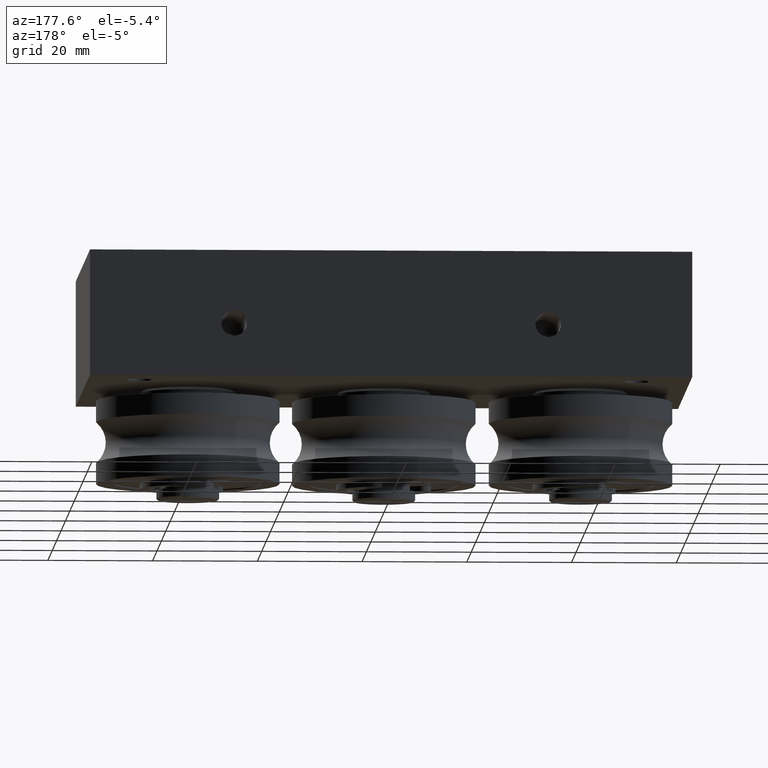
[diagram: clean part render]
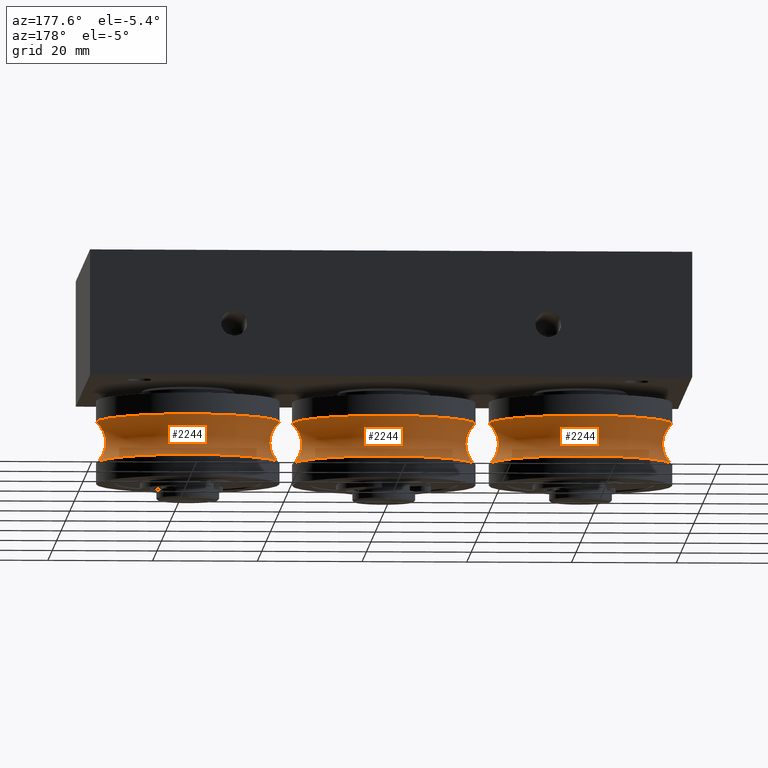
[diagram: same view with one multi-face feature highlighted, each face labeled with its STEP entity id]
A machine part, auxiliary view. The highlighted faces form ONE feature: a constant-radius fillet chain: 3 tangent blend faces with common blend radius 5 mm. The faces share edges in the B-rep.
Their STEP definitions:
[1] entity #2244 (Torus):
#91=TOROIDAL_SURFACE('',#2671,20.65,5.);
#383=FACE_OUTER_BOUND('',#560,.T.);
#560=EDGE_LOOP('',(#1854,#1855,#1856,#1857,#1858,#1859));
#974=CIRCLE('',#2653,17.5);
#976=CIRCLE('',#2655,17.5);
#978=CIRCLE('',#2658,17.5);
#979=CIRCLE('',#2659,17.5);
#986=CIRCLE('',#2672,5.);
#1145=VERTEX_POINT('',#3878);
#1146=VERTEX_POINT('',#3879);
#1149=VERTEX_POINT('',#3888);
#1150=VERTEX_POINT('',#3890);
#1387=EDGE_CURVE('',#1145,#1146,#974,.T.);
#1390=EDGE_CURVE('',#1146,#1145,#976,.T.);
#1393=EDGE_CURVE('',#1150,#1149,#978,.T.);
#1394=EDGE_CURVE('',#1149,#1150,#979,.T.);
#1402=EDGE_CURVE('',#1146,#1150,#986,.T.);
#1854=ORIENTED_EDGE('',*,*,#1387,.T.);
#1855=ORIENTED_EDGE('',*,*,#1402,.T.);
#1856=ORIENTED_EDGE('',*,*,#1393,.T.);
#1857=ORIENTED_EDGE('',*,*,#1394,.T.);
#1858=ORIENTED_EDGE('',*,*,#1402,.F.);
#1859=ORIENTED_EDGE('',*,*,#1390,.T.);
#2244=ADVANCED_FACE('',(#383),#91,.F.);
#2653=AXIS2_PLACEMENT_3D('',#3880,#3179,#3180);
#2655=AXIS2_PLACEMENT_3D('',#3884,#3184,#3185);
#2658=AXIS2_PLACEMENT_3D('',#3891,#3191,#3192);
#2659=AXIS2_PLACEMENT_3D('',#3892,#3193,#3194);
#2671=AXIS2_PLACEMENT_3D('',#3911,#3218,#3219);
#2672=AXIS2_PLACEMENT_3D('',#3912,#3220,#3221);
#3179=DIRECTION('center_axis',(0.,0.,1.));
#3180=DIRECTION('ref_axis',(0.,-1.,0.));
#3184=DIRECTION('center_axis',(0.,0.,1.));
#3185=DIRECTION('ref_axis',(0.,-1.,0.));
#3191=DIRECTION('center_axis',(0.,0.,-1.));
#3192=DIRECTION('ref_axis',(0.,-1.,0.));
#3193=DIRECTION('center_axis',(0.,0.,-1.));
#3194=DIRECTION('ref_axis',(0.,-1.,0.));
#3218=DIRECTION('center_axis',(4.9243499144701E-17,1.16870043086235E-16,
-1.));
#3219=DIRECTION('ref_axis',(-1.,0.,-3.46268389746637E-17));
#3220=DIRECTION('center_axis',(1.22464679914735E-16,1.,1.16870043086235E-16));
#3221=DIRECTION('ref_axis',(1.,-1.22464679914735E-16,4.32835487183297E-17));
#3878=CARTESIAN_POINT('',(-17.5,-2.14313189850787E-15,-11.8329756630708));
#3879=CARTESIAN_POINT('',(17.5,-2.79955139008714E-15,-11.8329756630708));
#3880=CARTESIAN_POINT('Origin',(0.,0.,-11.8329756630708));
#3884=CARTESIAN_POINT('Origin',(0.,0.,-11.8329756630708));
#3888=CARTESIAN_POINT('',(-17.5,-2.14313189850787E-15,-4.06702433692922));
#3890=CARTESIAN_POINT('',(17.5,-3.70715845617891E-15,-4.06702433692922));
#3891=CARTESIAN_POINT('Origin',(0.,0.,-4.06702433692922));
#3892=CARTESIAN_POINT('Origin',(0.,0.,-4.06702433692922));
#3911=CARTESIAN_POINT('Origin',(9.0205620750794E-16,-1.11022302462516E-15,
-7.95));
#3912=CARTESIAN_POINT('Origin',(20.65,-3.63911866486444E-15,-7.95));
[2] entity #2244 (Torus):
#91=TOROIDAL_SURFACE('',#2671,20.65,5.);
#383=FACE_OUTER_BOUND('',#560,.T.);
#560=EDGE_LOOP('',(#1854,#1855,#1856,#1857,#1858,#1859));
#974=CIRCLE('',#2653,17.5);
#976=CIRCLE('',#2655,17.5);
#978=CIRCLE('',#2658,17.5);
#979=CIRCLE('',#2659,17.5);
#986=CIRCLE('',#2672,5.);
#1145=VERTEX_POINT('',#3878);
#1146=VERTEX_POINT('',#3879);
#1149=VERTEX_POINT('',#3888);
#1150=VERTEX_POINT('',#3890);
#1387=EDGE_CURVE('',#1145,#1146,#974,.T.);
#1390=EDGE_CURVE('',#1146,#1145,#976,.T.);
#1393=EDGE_CURVE('',#1150,#1149,#978,.T.);
#1394=EDGE_CURVE('',#1149,#1150,#979,.T.);
#1402=EDGE_CURVE('',#1146,#1150,#986,.T.);
#1854=ORIENTED_EDGE('',*,*,#1387,.T.);
#1855=ORIENTED_EDGE('',*,*,#1402,.T.);
#1856=ORIENTED_EDGE('',*,*,#1393,.T.);
#1857=ORIENTED_EDGE('',*,*,#1394,.T.);
#1858=ORIENTED_EDGE('',*,*,#1402,.F.);
#1859=ORIENTED_EDGE('',*,*,#1390,.T.);
#2244=ADVANCED_FACE('',(#383),#91,.F.);
#2653=AXIS2_PLACEMENT_3D('',#3880,#3179,#3180);
#2655=AXIS2_PLACEMENT_3D('',#3884,#3184,#3185);
#2658=AXIS2_PLACEMENT_3D('',#3891,#3191,#3192);
#2659=AXIS2_PLACEMENT_3D('',#3892,#3193,#3194);
#2671=AXIS2_PLACEMENT_3D('',#3911,#3218,#3219);
#2672=AXIS2_PLACEMENT_3D('',#3912,#3220,#3221);
#3179=DIRECTION('center_axis',(0.,0.,1.));
#3180=DIRECTION('ref_axis',(0.,-1.,0.));
#3184=DIRECTION('center_axis',(0.,0.,1.));
#3185=DIRECTION('ref_axis',(0.,-1.,0.));
#3191=DIRECTION('center_axis',(0.,0.,-1.));
#3192=DIRECTION('ref_axis',(0.,-1.,0.));
#3193=DIRECTION('center_axis',(0.,0.,-1.));
#3194=DIRECTION('ref_axis',(0.,-1.,0.));
#3218=DIRECTION('center_axis',(4.9243499144701E-17,1.16870043086235E-16,
-1.));
#3219=DIRECTION('ref_axis',(-1.,0.,-3.46268389746637E-17));
#3220=DIRECTION('center_axis',(1.22464679914735E-16,1.,1.16870043086235E-16));
#3221=DIRECTION('ref_axis',(1.,-1.22464679914735E-16,4.32835487183297E-17));
#3878=CARTESIAN_POINT('',(-17.5,-2.14313189850787E-15,-11.8329756630708));
#3879=CARTESIAN_POINT('',(17.5,-2.79955139008714E-15,-11.8329756630708));
#3880=CARTESIAN_POINT('Origin',(0.,0.,-11.8329756630708));
#3884=CARTESIAN_POINT('Origin',(0.,0.,-11.8329756630708));
#3888=CARTESIAN_POINT('',(-17.5,-2.14313189850787E-15,-4.06702433692922));
#3890=CARTESIAN_POINT('',(17.5,-3.70715845617891E-15,-4.06702433692922));
#3891=CARTESIAN_POINT('Origin',(0.,0.,-4.06702433692922));
#3892=CARTESIAN_POINT('Origin',(0.,0.,-4.06702433692922));
#3911=CARTESIAN_POINT('Origin',(9.0205620750794E-16,-1.11022302462516E-15,
-7.95));
#3912=CARTESIAN_POINT('Origin',(20.65,-3.63911866486444E-15,-7.95));
[3] entity #2244 (Torus):
#91=TOROIDAL_SURFACE('',#2671,20.65,5.);
#383=FACE_OUTER_BOUND('',#560,.T.);
#560=EDGE_LOOP('',(#1854,#1855,#1856,#1857,#1858,#1859));
#974=CIRCLE('',#2653,17.5);
#976=CIRCLE('',#2655,17.5);
#978=CIRCLE('',#2658,17.5);
#979=CIRCLE('',#2659,17.5);
#986=CIRCLE('',#2672,5.);
#1145=VERTEX_POINT('',#3878);
#1146=VERTEX_POINT('',#3879);
#1149=VERTEX_POINT('',#3888);
#1150=VERTEX_POINT('',#3890);
#1387=EDGE_CURVE('',#1145,#1146,#974,.T.);
#1390=EDGE_CURVE('',#1146,#1145,#976,.T.);
#1393=EDGE_CURVE('',#1150,#1149,#978,.T.);
#1394=EDGE_CURVE('',#1149,#1150,#979,.T.);
#1402=EDGE_CURVE('',#1146,#1150,#986,.T.);
#1854=ORIENTED_EDGE('',*,*,#1387,.T.);
#1855=ORIENTED_EDGE('',*,*,#1402,.T.);
#1856=ORIENTED_EDGE('',*,*,#1393,.T.);
#1857=ORIENTED_EDGE('',*,*,#1394,.T.);
#1858=ORIENTED_EDGE('',*,*,#1402,.F.);
#1859=ORIENTED_EDGE('',*,*,#1390,.T.);
#2244=ADVANCED_FACE('',(#383),#91,.F.);
#2653=AXIS2_PLACEMENT_3D('',#3880,#3179,#3180);
#2655=AXIS2_PLACEMENT_3D('',#3884,#3184,#3185);
#2658=AXIS2_PLACEMENT_3D('',#3891,#3191,#3192);
#2659=AXIS2_PLACEMENT_3D('',#3892,#3193,#3194);
#2671=AXIS2_PLACEMENT_3D('',#3911,#3218,#3219);
#2672=AXIS2_PLACEMENT_3D('',#3912,#3220,#3221);
#3179=DIRECTION('center_axis',(0.,0.,1.));
#3180=DIRECTION('ref_axis',(0.,-1.,0.));
#3184=DIRECTION('center_axis',(0.,0.,1.));
#3185=DIRECTION('ref_axis',(0.,-1.,0.));
#3191=DIRECTION('center_axis',(0.,0.,-1.));
#3192=DIRECTION('ref_axis',(0.,-1.,0.));
#3193=DIRECTION('center_axis',(0.,0.,-1.));
#3194=DIRECTION('ref_axis',(0.,-1.,0.));
#3218=DIRECTION('center_axis',(4.9243499144701E-17,1.16870043086235E-16,
-1.));
#3219=DIRECTION('ref_axis',(-1.,0.,-3.46268389746637E-17));
#3220=DIRECTION('center_axis',(1.22464679914735E-16,1.,1.16870043086235E-16));
#3221=DIRECTION('ref_axis',(1.,-1.22464679914735E-16,4.32835487183297E-17));
#3878=CARTESIAN_POINT('',(-17.5,-2.14313189850787E-15,-11.8329756630708));
#3879=CARTESIAN_POINT('',(17.5,-2.79955139008714E-15,-11.8329756630708));
#3880=CARTESIAN_POINT('Origin',(0.,0.,-11.8329756630708));
#3884=CARTESIAN_POINT('Origin',(0.,0.,-11.8329756630708));
#3888=CARTESIAN_POINT('',(-17.5,-2.14313189850787E-15,-4.06702433692922));
#3890=CARTESIAN_POINT('',(17.5,-3.70715845617891E-15,-4.06702433692922));
#3891=CARTESIAN_POINT('Origin',(0.,0.,-4.06702433692922));
#3892=CARTESIAN_POINT('Origin',(0.,0.,-4.06702433692922));
#3911=CARTESIAN_POINT('Origin',(9.0205620750794E-16,-1.11022302462516E-15,
-7.95));
#3912=CARTESIAN_POINT('Origin',(20.65,-3.63911866486444E-15,-7.95));